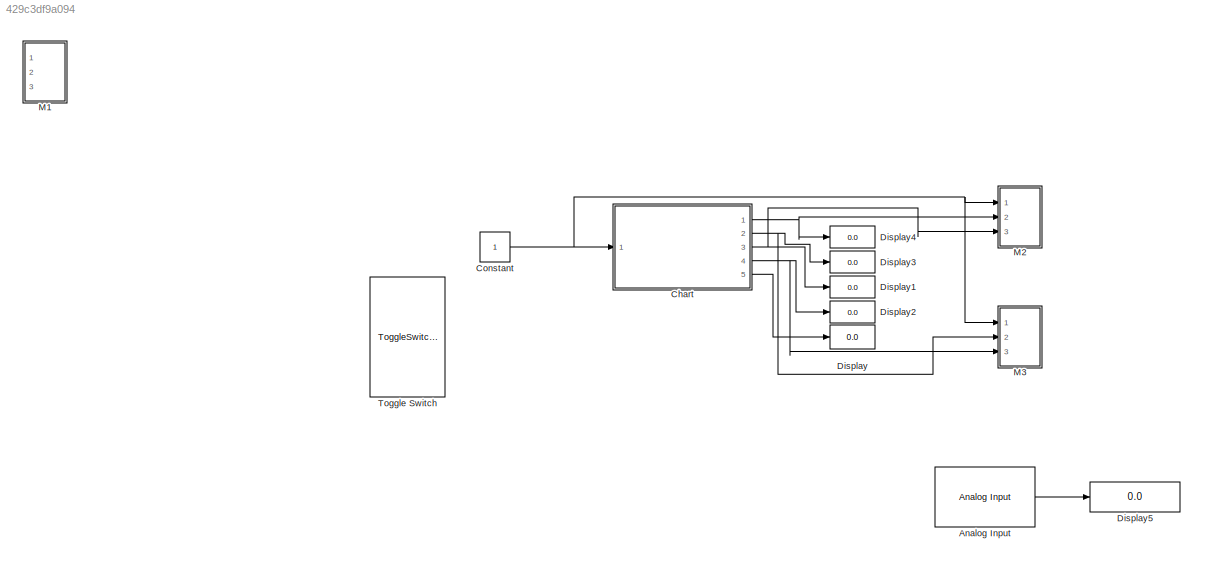
MODEL slx_429c3df9a094
KIND model
CONFIG AbsTol = auto
CONFIG EnableMultiTasking = on
CONFIG FixedStep = auto
CONFIG MaxStep = auto
CONFIG MinStep = auto
CONFIG RelTol = 1e-3
CONFIG SampleTimeConstraint = Unconstrained
CONFIG Solver = FixedStepAuto
CONFIG SolverName = FixedStepAuto
CONFIG StartTime = 0.0
CONFIG StopTime = inf
BLOCK [Reference] Analog Input  REF=mbedblockslib/Analog Input
  Ports = [0, 1]
  SourceBlock = mbedblockslib/Analog Input
  SourceProductBaseCode = MICROBIT,NUCLEO,STMICRODIS
  SourceType = mbed.AnalogInput
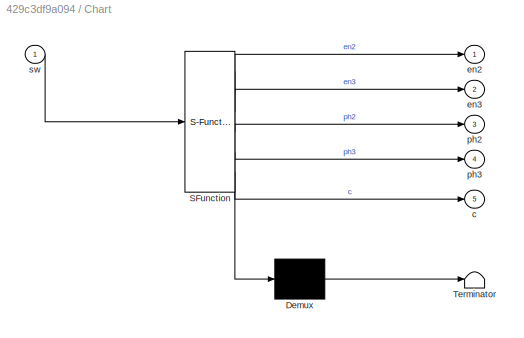
BLOCK [SubSystem] Chart
  ErrorFcn = Stateflow.Translate.translate
  PermitHierarchicalResolution = ExplicitOnly
  Ports = [1, 5]
  RequestExecContextInheritance = off
  SFBlockType = Chart
  TreatAsAtomicUnit = on
BLOCK [Demux] Chart/ Demux 
  Outputs = 1
  Ports = [1, 1]
BLOCK [S-Function] Chart/ SFunction 
  EnableBusSupport = on
  FunctionName = sf_sfun
  PortCounts = [1 6]
  Ports = [1, 6]
  SFcnIsStateOwnerBlock = off
  SFunctionDeploymentMode = off
  Tag = Stateflow S-Function 3
BLOCK [Terminator] Chart/ Terminator 
BLOCK [Outport] Chart/c
  Port = 5
BLOCK [Outport] Chart/en2
BLOCK [Outport] Chart/en3
  Port = 2
BLOCK [Outport] Chart/ph2
  Port = 3
BLOCK [Outport] Chart/ph3
  Port = 4
BLOCK [Inport] Chart/sw
BLOCK [Constant] Constant
BLOCK [Display] Display
  Decimation = 1
  Ports = [1]
BLOCK [Display] Display1
  Decimation = 1
  Ports = [1]
BLOCK [Display] Display2
  Decimation = 1
  Ports = [1]
BLOCK [Display] Display3
  Decimation = 1
  Ports = [1]
BLOCK [Display] Display4
  Decimation = 1
  Ports = [1]
BLOCK [Display] Display5
  Decimation = 1
  Ports = [1]
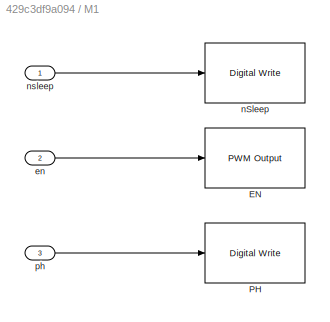
BLOCK [SubSystem] M1
  Commented = on
  Ports = [3]
  RequestExecContextInheritance = off
BLOCK [Reference] M1/EN  REF=mbedblockslib/PWM Output
  Ports = [1]
  SourceBlock = mbedblockslib/PWM Output
  SourceProductBaseCode = MICROBIT,NUCLEO,STMICRODIS
  SourceType = mbed.PWMOutput
BLOCK [Reference] M1/PH  REF=mbedblockslib/Digital Write
  Ports = [1]
  SourceBlock = mbedblockslib/Digital Write
  SourceProductBaseCode = MICROBIT,NUCLEO,STMICRODIS
  SourceType = mbed.DigitalWrite
BLOCK [Inport] M1/en
  Port = 2
BLOCK [Reference] M1/nSleep  REF=mbedblockslib/Digital Write
  Ports = [1]
  SourceBlock = mbedblockslib/Digital Write
  SourceProductBaseCode = MICROBIT,NUCLEO,STMICRODIS
  SourceType = mbed.DigitalWrite
BLOCK [Inport] M1/nsleep
BLOCK [Inport] M1/ph
  Port = 3
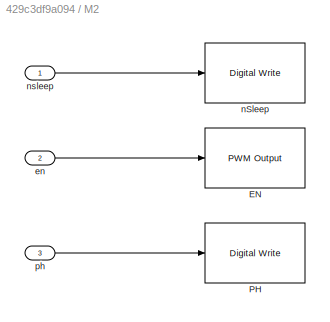
BLOCK [SubSystem] M2
  Ports = [3]
  RequestExecContextInheritance = off
BLOCK [Reference] M2/EN  REF=mbedblockslib/PWM Output
  Ports = [1]
  SourceBlock = mbedblockslib/PWM Output
  SourceProductBaseCode = MICROBIT,NUCLEO,STMICRODIS
  SourceType = mbed.PWMOutput
BLOCK [Reference] M2/PH  REF=mbedblockslib/Digital Write
  Ports = [1]
  SourceBlock = mbedblockslib/Digital Write
  SourceProductBaseCode = MICROBIT,NUCLEO,STMICRODIS
  SourceType = mbed.DigitalWrite
BLOCK [Inport] M2/en
  Port = 2
BLOCK [Reference] M2/nSleep  REF=mbedblockslib/Digital Write
  Ports = [1]
  SourceBlock = mbedblockslib/Digital Write
  SourceProductBaseCode = MICROBIT,NUCLEO,STMICRODIS
  SourceType = mbed.DigitalWrite
BLOCK [Inport] M2/nsleep
BLOCK [Inport] M2/ph
  Port = 3
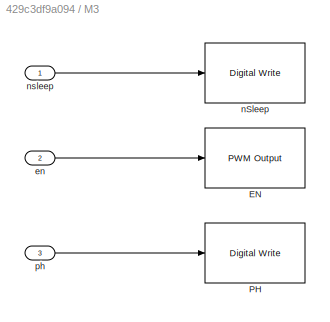
BLOCK [SubSystem] M3
  Ports = [3]
  RequestExecContextInheritance = off
BLOCK [Reference] M3/EN  REF=mbedblockslib/PWM Output
  Ports = [1]
  SourceBlock = mbedblockslib/PWM Output
  SourceProductBaseCode = MICROBIT,NUCLEO,STMICRODIS
  SourceType = mbed.PWMOutput
BLOCK [Reference] M3/PH  REF=mbedblockslib/Digital Write
  Ports = [1]
  SourceBlock = mbedblockslib/Digital Write
  SourceProductBaseCode = MICROBIT,NUCLEO,STMICRODIS
  SourceType = mbed.DigitalWrite
BLOCK [Inport] M3/en
  Port = 2
BLOCK [Reference] M3/nSleep  REF=mbedblockslib/Digital Write
  Ports = [1]
  SourceBlock = mbedblockslib/Digital Write
  SourceProductBaseCode = MICROBIT,NUCLEO,STMICRODIS
  SourceType = mbed.DigitalWrite
BLOCK [Inport] M3/nsleep
BLOCK [Inport] M3/ph
  Port = 3
BLOCK [ToggleSwitchBlock] Toggle Switch
LINE Analog Input:1 -> Display5:1
NET Chart:1 -> Display4:1, M2:2
NET Chart:2 -> Display3:1, M3:2
NET Chart:3 -> Display1:1, M2:3
NET Chart:4 -> Display2:1, M3:3
LINE Chart:5 -> Display:1
NET Constant:1 -> Chart:1, M2:1, M3:1
LINE M1/en:1 -> M1/EN:1
LINE M1/nsleep:1 -> M1/nSleep:1
LINE M1/ph:1 -> M1/PH:1
LINE M2/en:1 -> M2/EN:1
LINE M2/nsleep:1 -> M2/nSleep:1
LINE M2/ph:1 -> M2/PH:1
LINE M3/en:1 -> M3/EN:1
LINE M3/nsleep:1 -> M3/nSleep:1
LINE M3/ph:1 -> M3/PH:1
note: NET lines group one-source signal fan-out (src -> all destinations, sorted); 1:1 wires keep LINE
CHART Chart states=3 transitions=5
  STATE_LABEL 'forward2\nduring:\nc=c+1;'
  STATE_LABEL 'sleep'
  STATE_LABEL 'forward3\nduring:\nc=c+1;'
CHART  states=0 transitions=0
